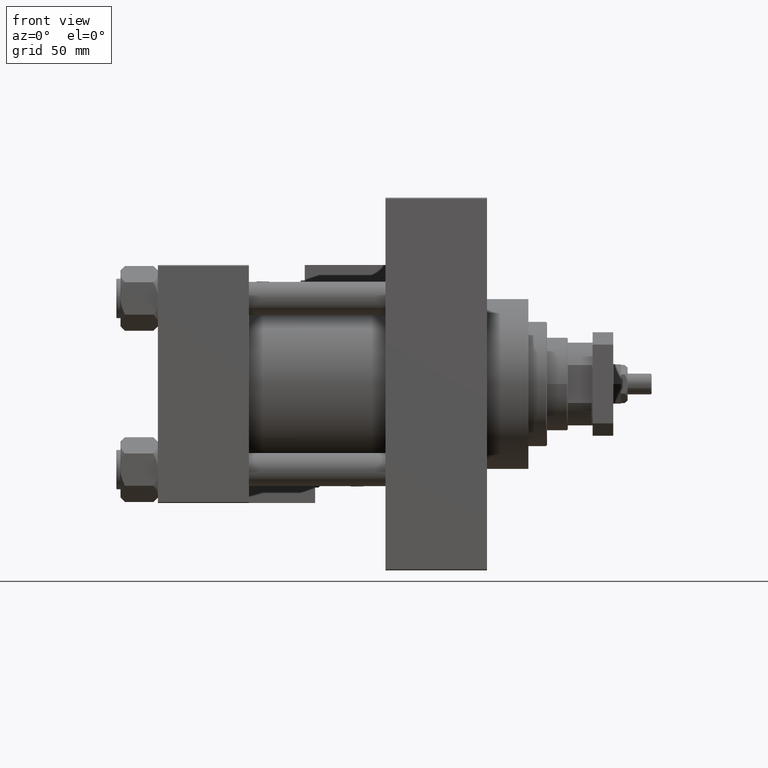
[diagram: clean part render]
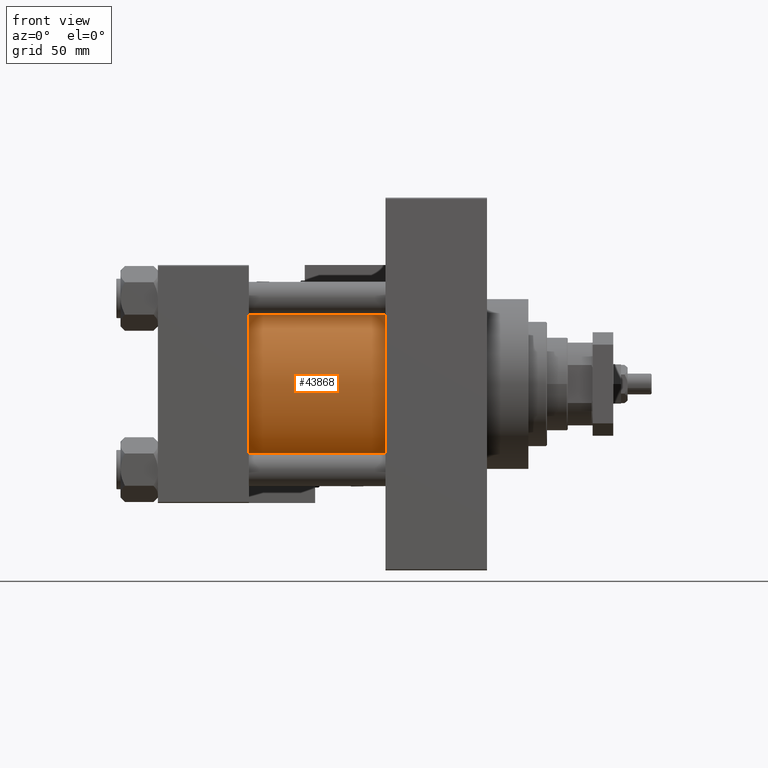
[diagram: same view with one face highlighted and labeled with its STEP entity id]
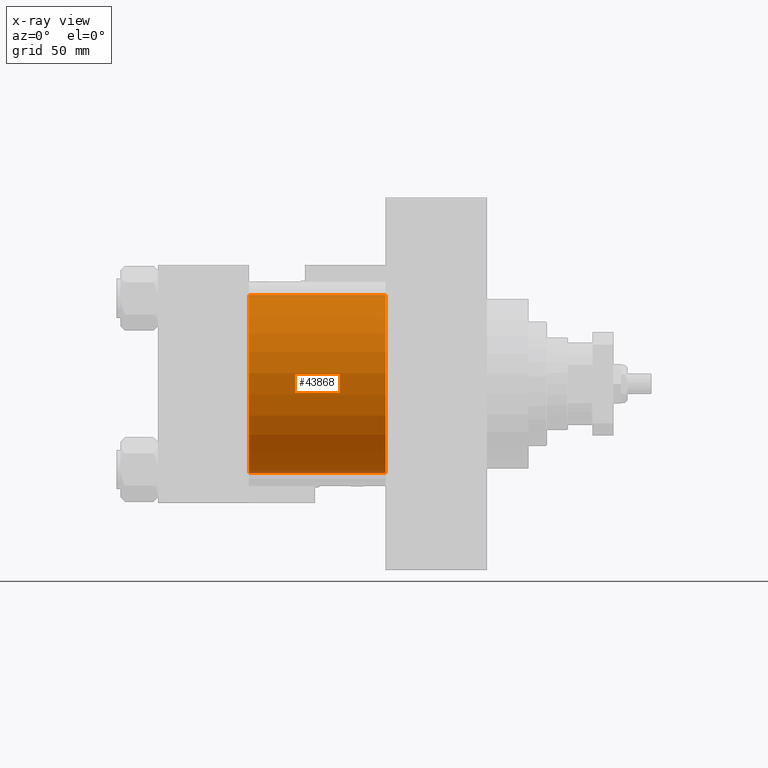
[diagram: x-ray of the same camera — body ghosted, the highlighted face saturated]
A machine part, front view. The second image highlights one B-rep face of the part: STEP entity #43868.
The next image is the same camera in x-ray: the body ghosted, the highlighted face saturated — about 3% of this face is hidden behind the body in this view.
In plain terms, the highlighted cylindrical surface (partial cylindrical patch) has radius 43 mm, axis along (-1, -0, -0).
Its self-contained STEP definition (entity closure, byte-faithful):
#3429 = CYLINDRICAL_SURFACE ( 'NONE', #22658, 43.00000000000000000 ) ;
#4029 = CARTESIAN_POINT ( 'NONE',  ( 110.0000000000000000, -2.602085213965210642E-15, 43.00000000000000000 ) ) ;
#5159 = ORIENTED_EDGE ( 'NONE', *, *, #52059, .T. ) ;
#5850 = ORIENTED_EDGE ( 'NONE', *, *, #14943, .T. ) ;
#6931 = ORIENTED_EDGE ( 'NONE', *, *, #28371, .F. ) ;
#9011 = EDGE_LOOP ( 'NONE', ( #6931, #33030, #5850, #5159 ) ) ;
#9147 = DIRECTION ( 'NONE',  ( 1.000000000000000000, -0.000000000000000000, 0.000000000000000000 ) ) ;
#13916 = DIRECTION ( 'NONE',  ( 0.000000000000000000, 0.000000000000000000, 1.000000000000000000 ) ) ;
#14943 = EDGE_CURVE ( 'NONE', #48834, #26901, #37987, .T. ) ;
#15395 = CARTESIAN_POINT ( 'NONE',  ( 110.0000000000000000, 2.663896022368408223E-15, -43.00000000000000000 ) ) ;
#16101 = VECTOR ( 'NONE', #20849, 1000.000000000000000 ) ;
#17171 = CARTESIAN_POINT ( 'NONE',  ( 44.00000000000000000, -2.602085213965210642E-15, 43.00000000000000000 ) ) ;
#18067 = CARTESIAN_POINT ( 'NONE',  ( 110.0000000000000000, -2.602085213965210642E-15, 0.000000000000000000 ) ) ;
#19429 = VERTEX_POINT ( 'NONE', #50522 ) ;
#20212 = CIRCLE ( 'NONE', #46181, 43.00000000000000000 ) ;
#20849 = DIRECTION ( 'NONE',  ( -1.000000000000000000, -0.000000000000000000, -0.000000000000000000 ) ) ;
#22658 = AXIS2_PLACEMENT_3D ( 'NONE', #42429, #51115, #30091 ) ;
#26587 = EDGE_CURVE ( 'NONE', #48834, #19429, #29001, .T. ) ;
#26819 = CARTESIAN_POINT ( 'NONE',  ( 44.00000000000000000, -2.602085213965210642E-15, 0.000000000000000000 ) ) ;
#26901 = VERTEX_POINT ( 'NONE', #17171 ) ;
#28371 = EDGE_CURVE ( 'NONE', #19429, #45506, #36181, .T. ) ;
#29001 = CIRCLE ( 'NONE', #43305, 43.00000000000000000 ) ;
#30091 = DIRECTION ( 'NONE',  ( 0.000000000000000000, 0.000000000000000000, 1.000000000000000000 ) ) ;
#30353 = FACE_OUTER_BOUND ( 'NONE', #9011, .T. ) ;
#31630 = CARTESIAN_POINT ( 'NONE',  ( 44.00000000000000000, 2.663896022368408223E-15, -43.00000000000000000 ) ) ;
#32528 = DIRECTION ( 'NONE',  ( -1.000000000000000000, -0.000000000000000000, -0.000000000000000000 ) ) ;
#33030 = ORIENTED_EDGE ( 'NONE', *, *, #26587, .F. ) ;
#36181 = LINE ( 'NONE', #15395, #52338 ) ;
#37987 = LINE ( 'NONE', #41339, #16101 ) ;
#40220 = DIRECTION ( 'NONE',  ( 1.000000000000000000, 0.000000000000000000, 0.000000000000000000 ) ) ;
#41339 = CARTESIAN_POINT ( 'NONE',  ( 110.0000000000000000, -2.602085213965210642E-15, 43.00000000000000000 ) ) ;
#42429 = CARTESIAN_POINT ( 'NONE',  ( 110.0000000000000000, -2.602085213965210642E-15, 0.000000000000000000 ) ) ;
#43305 = AXIS2_PLACEMENT_3D ( 'NONE', #18067, #40220, #51730 ) ;
#43868 = ADVANCED_FACE ( 'NONE', ( #30353 ), #3429, .T. ) ;
#45506 = VERTEX_POINT ( 'NONE', #31630 ) ;
#46181 = AXIS2_PLACEMENT_3D ( 'NONE', #26819, #9147, #13916 ) ;
#48834 = VERTEX_POINT ( 'NONE', #4029 ) ;
#50522 = CARTESIAN_POINT ( 'NONE',  ( 110.0000000000000000, 2.663896022368408223E-15, -43.00000000000000000 ) ) ;
#51115 = DIRECTION ( 'NONE',  ( -1.000000000000000000, -0.000000000000000000, -0.000000000000000000 ) ) ;
#51730 = DIRECTION ( 'NONE',  ( 0.000000000000000000, 0.000000000000000000, -1.000000000000000000 ) ) ;
#52059 = EDGE_CURVE ( 'NONE', #26901, #45506, #20212, .T. ) ;
#52338 = VECTOR ( 'NONE', #32528, 1000.000000000000000 ) ;